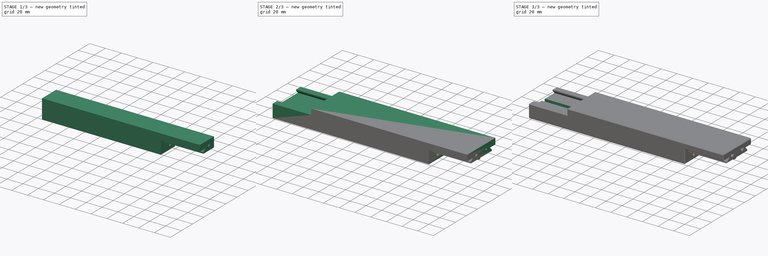
[diagram: build sequence overview — one tinted view per stage of 3, left to right]
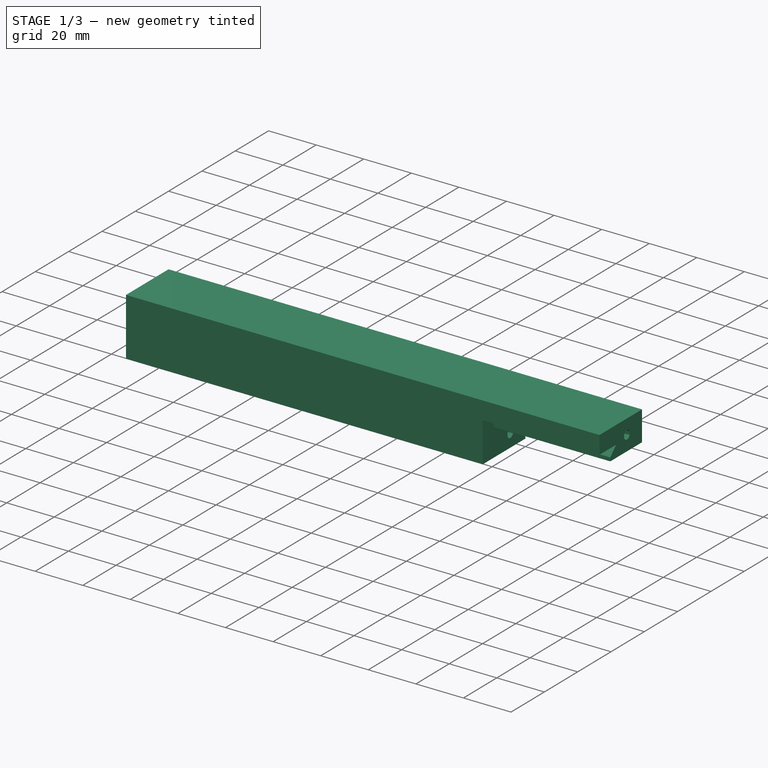
[diagram: stage 1 of 3 — iso view after this stage's code; geometry added in this stage tinted green]
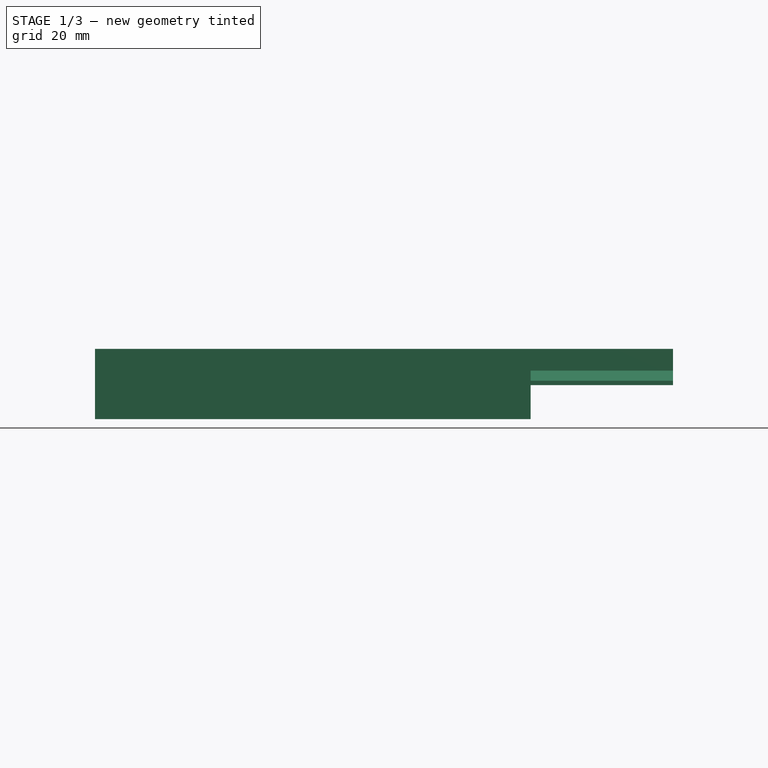
[diagram: stage 1 of 3 — front view after this stage's code; geometry added in this stage tinted green]
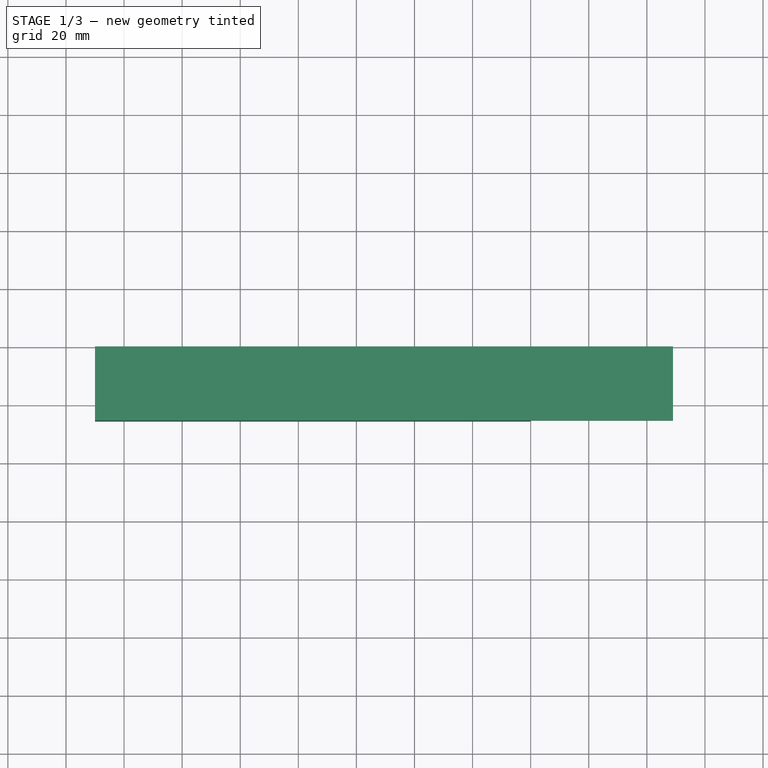
[diagram: stage 1 of 3 — top view after this stage's code; geometry added in this stage tinted green]
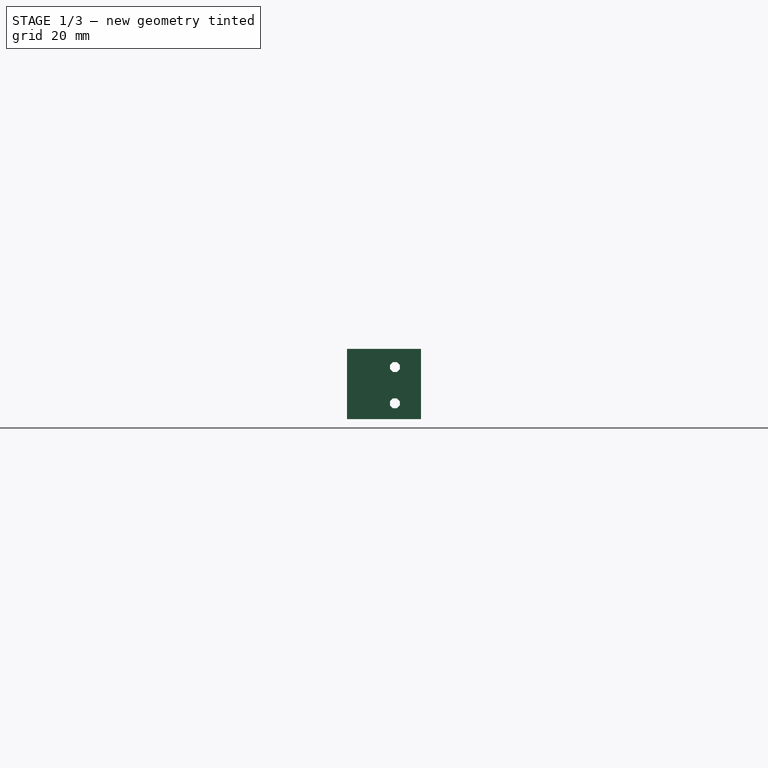
[diagram: stage 1 of 3 — right view after this stage's code; geometry added in this stage tinted green]
FCSTD DOCUMENT  (FreeCAD 1.0R39319 (Git))
Label: Tripod_arcs_extender
License: CERN Open Hardware Licence permissive
LicenseURL: https://cern-ohl.web.cern.ch/
objects: Sketcher::SketchObject×5, PartDesign::Pad×4, PartDesign::Mirrored×1, PartDesign::Pocket×1, PartDesign::Chamfer×1, PartDesign::Body×1
note: 31 computed .brp shape members not serialized (recipe doc carries the construction recipe); baked Part::Feature solids carry a one-line shape summary decoded from their .brp

FEATURE [Sketcher::SketchObject] Sketch
  ArcFitTolerance = 1e-06
  AttachmentSupport = -> [YZ_Plane]
  FullyConstrained = true
  MakeInternals = false
  MapMode = 5
  Placement = pos=(0,0,0) rot=(0.57735,0.57735,0.57735;2.0944rad)
  sketch-geometry (19):
    g0: LineSegment StartX=0 StartY=0 StartZ=0 EndX=-19 EndY=0 EndZ=0
    g1: LineSegment StartX=-19 StartY=1.5 StartZ=0 EndX=-15.5 EndY=5 EndZ=0
    g2: LineSegment StartX=-15.5 StartY=5 StartZ=0 EndX=-25.5 EndY=5 EndZ=0
    g3: LineSegment StartX=-25.5 StartY=5 StartZ=0 EndX=-25.5 EndY=12.5 EndZ=0
    g4: LineSegment StartX=-25.5 StartY=12.5 StartZ=0 EndX=0 EndY=12.5 EndZ=0
    g5: LineSegment StartX=0 StartY=12.5 StartZ=0 EndX=0 EndY=0 EndZ=0
    g6: Circle [constr] CenterX=-9 CenterY=6.25 CenterZ=0 NormalX=0 NormalY=0 NormalZ=1 AngleXU=0 Radius=1.7
    g7: LineSegment [constr] StartX=-9 StartY=6.25 StartZ=0 EndX=-9 EndY=12.5 EndZ=0
    g8: LineSegment [constr] StartX=-9 StartY=6.25 StartZ=0 EndX=0 EndY=6.25 EndZ=0
    g9: LineSegment StartX=-19 StartY=1.5 StartZ=0 EndX=-19 EndY=0 EndZ=0
    g10: LineSegment StartX=-10.7 StartY=6.95416 StartZ=0 EndX=-10.7 EndY=5.54584 EndZ=0
    g11: LineSegment StartX=-10.7 StartY=5.54584 StartZ=0 EndX=-9.70416 EndY=4.55 EndZ=0
    g12: LineSegment StartX=-9.70416 StartY=4.55 StartZ=0 EndX=-8.29584 EndY=4.55 EndZ=0
    g13: LineSegment StartX=-8.29584 StartY=4.55 StartZ=0 EndX=-7.3 EndY=5.54584 EndZ=0
    g14: LineSegment StartX=-7.3 StartY=5.54584 StartZ=0 EndX=-7.3 EndY=6.95416 EndZ=0
    g15: LineSegment StartX=-7.3 StartY=6.95416 StartZ=0 EndX=-8.29584 EndY=7.95 EndZ=0
    g16: LineSegment StartX=-8.29584 StartY=7.95 StartZ=0 EndX=-9.70416 EndY=7.95 EndZ=0
    g17: LineSegment StartX=-9.70416 StartY=7.95 StartZ=0 EndX=-10.7 EndY=6.95416 EndZ=0
    g18: Circle [constr] CenterX=-9 CenterY=6.25 CenterZ=0 NormalX=0 NormalY=0 NormalZ=1 AngleXU=0 Radius=1.84007
  constraints (48):
    c: Coincident(g-1,g0)
    c: Coincident(g1,g2)
    c: Horizontal(g2)
    c: Coincident(g2,g3)
    c: Vertical(g3)
    c: Coincident(g3,g4)
    c: Horizontal(g4)
    c: Coincident(g4,g5)
    c: Coincident(g5,g0)
    c: Vertical(g5)
    c: Angle(g0,g1) = 0.785398
    c: DistanceY(g3,g3) = 7.5
    c: DistanceX(g2,g2) = 10
    c: Diameter(g6) = 3.4
    c: Coincident(g7,g6)
    c: PointOnObject(g7,g4)
    c: Vertical(g7)
    c: Coincident(g8,g6)
    c: Symmetric(g5,g5,g8)
    c: Horizontal(g8)
    c: DistanceX(g8,g8) = 9
    c: Vertical(g9)
    c: Coincident(g0,g9)
    c: Coincident(g1,g9)
    c: DistanceX(g0,g0) = 19
    c: Distance(g1,g2) = 3.5
    c: Distance(g9,g9) = 1.5
    c: Horizontal(g0)
    c: Coincident(g10,g11)
    c: Coincident(g11,g12)
    c: Coincident(g12,g13)
    c: Coincident(g13,g14)
    c: Coincident(g14,g15)
    c: Coincident(g15,g16)
    c: Coincident(g16,g17)
    c: Coincident(g17,g10)
    c: Equal(g10, g11-g17) x7
    c: PointOnObject(g10,g18)
    c: PointOnObject(g11,g18)
    c: PointOnObject(g12,g18)
    c: PointOnObject(g13,g18)
    c: PointOnObject(g14,g18)
    c: PointOnObject(g15,g18)
    c: PointOnObject(g16,g18)
    c: PointOnObject(g17,g18)
    c: Coincident(g18,g6)
    c: Horizontal(g16)
    c: Tangent(g16,g6)
FEATURE [PartDesign::Pad] Pad
  Direction = (1,0,0)
  Length = 49
  Length2 = 10
  Placement = pos=(0,0,0) rot=(1,1,1;2.0944rad)
  Profile = -> Sketch
  ReferenceAxis = -> Sketch [N_Axis]
  Refine = true
  Suppressed = false
  Type = 0
FEATURE [Sketcher::SketchObject] Sketch001
  ArcFitTolerance = 1e-06
  AttachmentSupport = -> [Pad]
  ExternalGeometry = -> [Pad]
  FullyConstrained = true
  MakeInternals = false
  MapMode = 5
  Placement = pos=(0,0,0) rot=(0.57735,0.57735,-0.57735;4.18879rad)
  sketch-geometry (23):
    g0: LineSegment StartX=0 StartY=0 StartZ=0 EndX=0 EndY=11.7 EndZ=0
    g1: LineSegment StartX=0 StartY=11.7 StartZ=0 EndX=-25.5 EndY=11.7 EndZ=0
    g2: LineSegment StartX=-25.5 StartY=11.7 StartZ=0 EndX=-25.5 EndY=-12.5 EndZ=0
    g3: LineSegment StartX=-25.5 StartY=-12.5 StartZ=0 EndX=0 EndY=-12.5 EndZ=0
    g4: LineSegment StartX=0 StartY=-12.5 StartZ=0 EndX=0 EndY=0 EndZ=0
    g5: LineSegment StartX=-9.70416 StartY=-4.55 StartZ=0 EndX=-10.7 EndY=-5.54584 EndZ=0
    g6: LineSegment StartX=-10.7 StartY=-5.54584 StartZ=0 EndX=-10.7 EndY=-6.95416 EndZ=0
    g7: LineSegment StartX=-10.7 StartY=-6.95416 StartZ=0 EndX=-9.70416 EndY=-7.95 EndZ=0
    g8: LineSegment StartX=-9.70416 StartY=-7.95 StartZ=0 EndX=-8.29584 EndY=-7.95 EndZ=0
    g9: LineSegment StartX=-8.29584 StartY=-7.95 StartZ=0 EndX=-7.3 EndY=-6.95416 EndZ=0
    g10: LineSegment StartX=-7.3 StartY=-6.95416 StartZ=0 EndX=-7.3 EndY=-5.54584 EndZ=0
    g11: LineSegment StartX=-7.3 StartY=-5.54584 StartZ=0 EndX=-8.29584 EndY=-4.55 EndZ=0
    g12: LineSegment StartX=-8.29584 StartY=-4.55 StartZ=0 EndX=-9.70416 EndY=-4.55 EndZ=0
    g13: Circle [constr] CenterX=-9 CenterY=-6.25 CenterZ=0 NormalX=0 NormalY=0 NormalZ=1 AngleXU=0 Radius=1.84007
    g14: LineSegment StartX=-9.70416 StartY=7.95 StartZ=0 EndX=-10.7 EndY=6.95416 EndZ=0
    g15: LineSegment StartX=-10.7 StartY=6.95416 StartZ=0 EndX=-10.7 EndY=5.54584 EndZ=0
    g16: LineSegment StartX=-10.7 StartY=5.54584 StartZ=0 EndX=-9.70416 EndY=4.55 EndZ=0
    g17: LineSegment StartX=-9.70416 StartY=4.55 StartZ=0 EndX=-8.29584 EndY=4.55 EndZ=0
    g18: LineSegment StartX=-8.29584 StartY=4.55 StartZ=0 EndX=-7.3 EndY=5.54584 EndZ=0
    g19: LineSegment StartX=-7.3 StartY=5.54584 StartZ=0 EndX=-7.3 EndY=6.95416 EndZ=0
    g20: LineSegment StartX=-7.3 StartY=6.95416 StartZ=0 EndX=-8.29584 EndY=7.95 EndZ=0
    g21: LineSegment StartX=-8.29584 StartY=7.95 StartZ=0 EndX=-9.70416 EndY=7.95 EndZ=0
    g22: Circle [constr] CenterX=-9 CenterY=6.25 CenterZ=0 NormalX=0 NormalY=0 NormalZ=1 AngleXU=0 Radius=1.84007
  constraints (52):
    c: Coincident(g-1,g0)
    c: PointOnObject(g0,g-2)
    c: Coincident(g0,g1)
    c: Horizontal(g1)
    c: Coincident(g1,g2)
    c: Coincident(g2,g-3)
    c: Vertical(g2)
    c: Coincident(g2,g3)
    c: Coincident(g3,g-3)
    c: Coincident(g3,g4)
    c: Coincident(g4,g0)
    c: DistanceY(g0,g0) = 11.7
    c: Coincident(g5,g6)
    c: Coincident(g6,g7)
    c: Coincident(g7,g8)
    c: Coincident(g8,g9)
    c: Coincident(g9,g10)
    c: Coincident(g10,g11)
    c: Coincident(g11,g12)
    c: Coincident(g12,g5)
    c: Equal(g5, g6-g12) x7
    c: PointOnObject(g5,g13)
    c: PointOnObject(g6,g13)
    c: PointOnObject(g7,g13)
    c: PointOnObject(g8,g13)
    c: PointOnObject(g9,g13)
    c: PointOnObject(g10,g13)
    c: PointOnObject(g11,g13)
    c: PointOnObject(g12,g13)
    c: Horizontal(g12)
    c: Equal(g12,g-6)
    c: Coincident(g5,g-6)
    c: Coincident(g14,g15)
    c: Coincident(g15,g16)
    c: Coincident(g16,g17)
    c: Coincident(g17,g18)
    c: Coincident(g18,g19)
    c: Coincident(g19,g20)
    c: Coincident(g20,g21)
    c: Coincident(g21,g14)
    c: Equal(g14, g15-g21) x7
    c: PointOnObject(g14,g22)
    c: PointOnObject(g15,g22)
    c: PointOnObject(g16,g22)
    c: PointOnObject(g17,g22)
    c: PointOnObject(g18,g22)
    c: PointOnObject(g19,g22)
    c: PointOnObject(g20,g22)
    c: PointOnObject(g21,g22)
    c: Horizontal(g21)
    c: Equal(g21,g12)
    c: Symmetric(g13,g22,g-1)
FEATURE [PartDesign::Pad] Pad001
  BaseFeature = -> Pad
  Direction = (-1,0,0)
  Length = 150
  Length2 = 10
  Placement = pos=(0,0,0) rot=(1,1,1;2.0944rad)
  Profile = -> Sketch001
  ReferenceAxis = -> Sketch001 [N_Axis]
  Refine = true
  Suppressed = false
  Type = 0
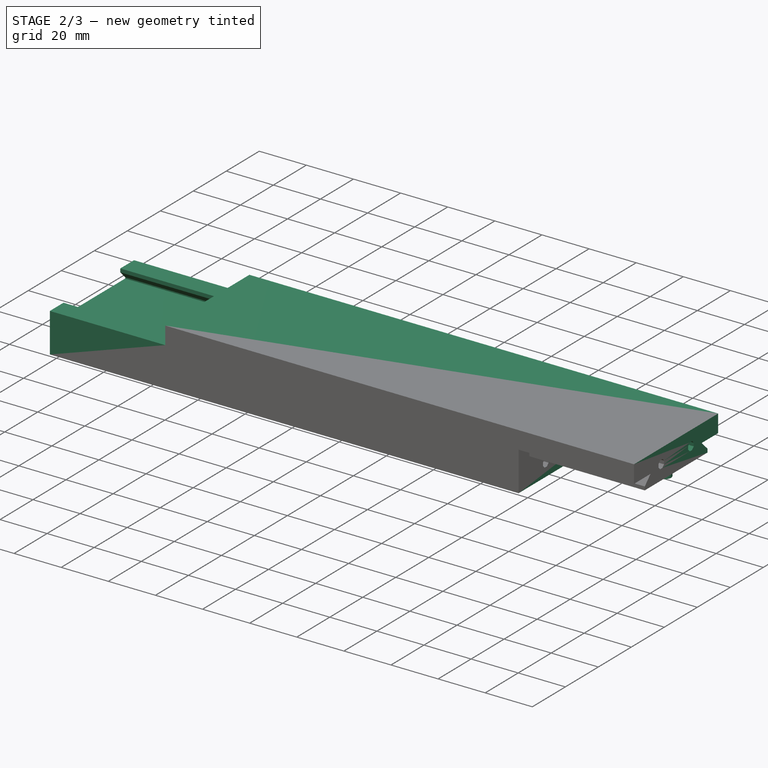
[diagram: stage 2 of 3 — iso view after this stage's code; geometry added in this stage tinted green]
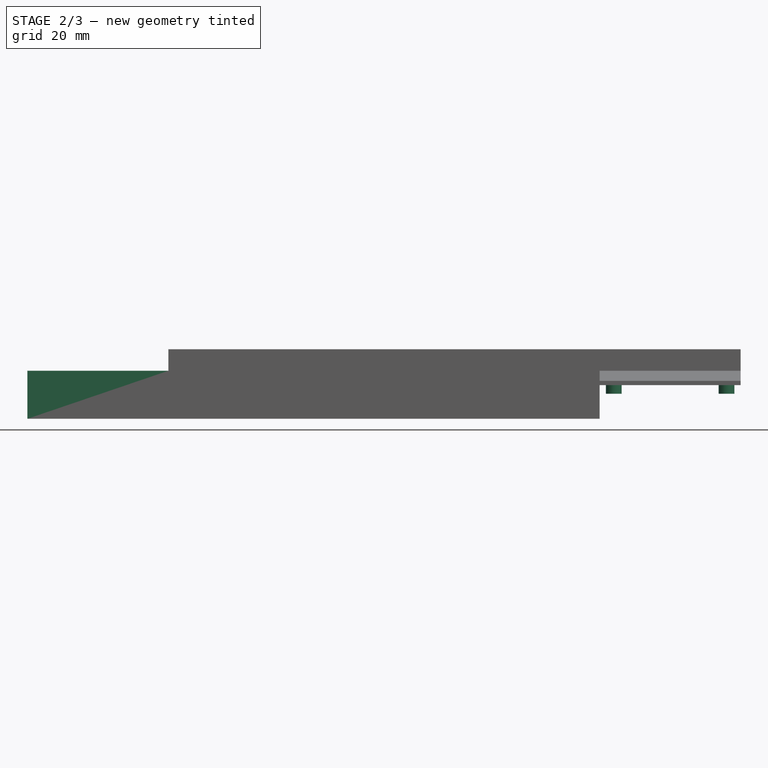
[diagram: stage 2 of 3 — front view after this stage's code; geometry added in this stage tinted green]
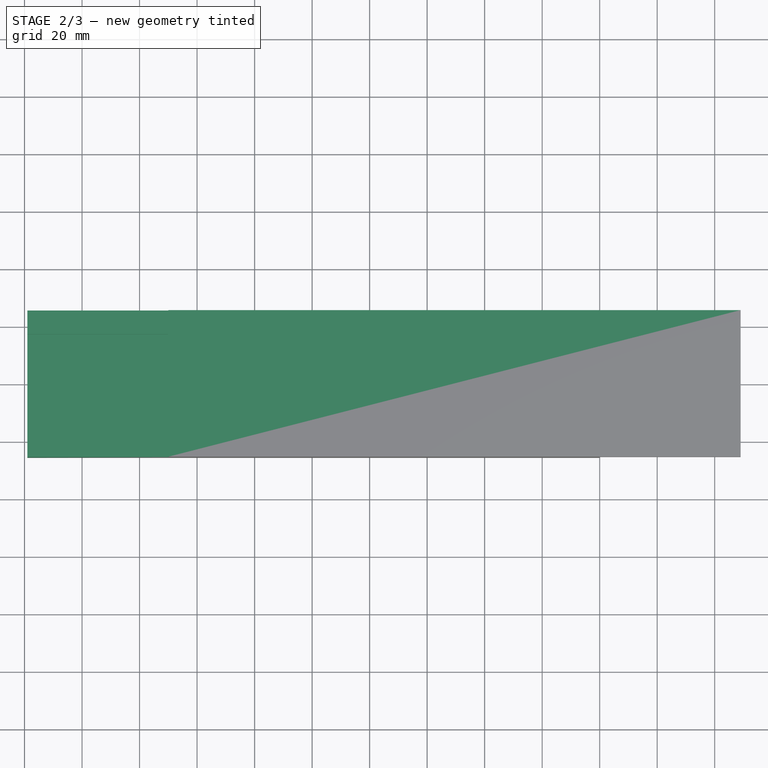
[diagram: stage 2 of 3 — top view after this stage's code; geometry added in this stage tinted green]
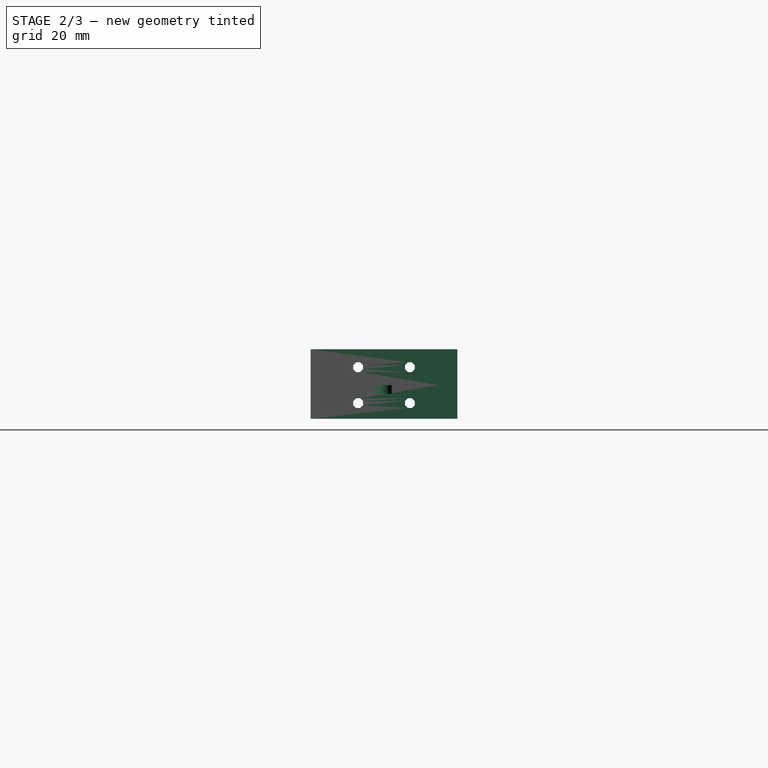
[diagram: stage 2 of 3 — right view after this stage's code; geometry added in this stage tinted green]
FEATURE [Sketcher::SketchObject] Sketch002
  ArcFitTolerance = 1e-06
  AttachmentSupport = -> [Pad001]
  ExternalGeometry = -> [Pad001]
  FullyConstrained = true
  MakeInternals = false
  MapMode = 5
  Placement = pos=(-150,3.33e-14,-1.67e-14) rot=(0.57735,0.57735,-0.57735;4.18879rad)
  sketch-geometry (17):
    g0: LineSegment StartX=0 StartY=11.7 StartZ=0 EndX=-25.5 EndY=11.7 EndZ=0
    g1: LineSegment StartX=-25.5 StartY=11.7 StartZ=0 EndX=-25.5 EndY=-5 EndZ=0
    g2: LineSegment StartX=-25.5 StartY=-5 StartZ=0 EndX=-17.2121 EndY=-5 EndZ=0
    g3: LineSegment StartX=-17.2121 StartY=-3.5 StartZ=0 EndX=-20.2121 EndY=-0.5 EndZ=0
    g4: LineSegment StartX=-20.2121 StartY=-0.5 StartZ=0 EndX=-20.2121 EndY=0 EndZ=0
    g5: LineSegment StartX=-20.2121 StartY=0 StartZ=0 EndX=0 EndY=0 EndZ=0
    g6: LineSegment StartX=0 StartY=0 StartZ=0 EndX=0 EndY=11.7 EndZ=0
    g7: LineSegment StartX=-17.2121 StartY=-3.5 StartZ=0 EndX=-17.2121 EndY=-5 EndZ=0
    g8: LineSegment StartX=-9.70416 StartY=7.95 StartZ=0 EndX=-10.7 EndY=6.95416 EndZ=0
    g9: LineSegment StartX=-10.7 StartY=6.95416 StartZ=0 EndX=-10.7 EndY=5.54584 EndZ=0
    g10: LineSegment StartX=-10.7 StartY=5.54584 StartZ=0 EndX=-9.70416 EndY=4.55 EndZ=0
    g11: LineSegment StartX=-9.70416 StartY=4.55 StartZ=0 EndX=-8.29584 EndY=4.55 EndZ=0
    g12: LineSegment StartX=-8.29584 StartY=4.55 StartZ=0 EndX=-7.3 EndY=5.54584 EndZ=0
    g13: LineSegment StartX=-7.3 StartY=5.54584 StartZ=0 EndX=-7.3 EndY=6.95416 EndZ=0
    g14: LineSegment StartX=-7.3 StartY=6.95416 StartZ=0 EndX=-8.29584 EndY=7.95 EndZ=0
    g15: LineSegment StartX=-8.29584 StartY=7.95 StartZ=0 EndX=-9.70416 EndY=7.95 EndZ=0
    g16: Circle [constr] CenterX=-9 CenterY=6.25 CenterZ=0 NormalX=0 NormalY=0 NormalZ=1 AngleXU=0 Radius=1.84007
  constraints (40):
    c: Coincident(g-6,g0)
    c: Coincident(g0,g-3)
    c: Coincident(g0,g1)
    c: Coincident(g1,g-4)
    c: Coincident(g1,g2)
    c: Coincident(g5,g-1)
    c: Coincident(g5,g6)
    c: Coincident(g6,g0)
    c: Vertical(g7)
    c: Coincident(g2,g7)
    c: Distance(g7,g7) = 1.5
    c: Horizontal(g2)
    c: Parallel(g3,g-7)
    c: Coincident(g8,g9)
    c: Coincident(g9,g10)
    c: Coincident(g10,g11)
    c: Coincident(g11,g12)
    c: Coincident(g12,g13)
    c: Coincident(g13,g14)
    c: Coincident(g14,g15)
    c: Coincident(g15,g8)
    c: Equal(g8, g9-g15) x7
    c: PointOnObject(g8,g16)
    c: PointOnObject(g9,g16)
    c: PointOnObject(g10,g16)
    c: PointOnObject(g11,g16)
    c: PointOnObject(g12,g16)
    c: PointOnObject(g13,g16)
    c: PointOnObject(g14,g16)
    c: PointOnObject(g15,g16)
    c: Horizontal(g15)
    c: Equal(g15,g-8)
    c: Coincident(g8,g-8)
    c: Coincident(g3,g4)
    c: Coincident(g3,g7)
    c: Coincident(g4,g5)
    c: Vertical(g4)
    c: Distance(g-7,g3) = 0.15
    c: Horizontal(g5)
    c: Distance(g4,g4) = 0.5
FEATURE [PartDesign::Pad] Pad002
  BaseFeature = -> Pad001
  Direction = (-1,0,0)
  Length = 49
  Length2 = 10
  Placement = pos=(0,0,0) rot=(1,1,1;2.0944rad)
  Profile = -> Sketch002
  ReferenceAxis = -> Sketch002 [N_Axis]
  Refine = true
  Suppressed = false
  Type = 0
FEATURE [PartDesign::Mirrored] Mirrored
  BaseFeature = -> Pad002
  MirrorPlane = -> Sketch002 [V_Axis]
  Originals = -> [Pad002,Pad001,Pad]
  Placement = pos=(0,0,0) rot=(1,1,1;2.0944rad)
  Refine = true
  Suppressed = false
  TransformMode = 0
FEATURE [Sketcher::SketchObject] Sketch003
  ArcFitTolerance = 1e-06
  AttachmentSupport = -> [Mirrored]
  ExternalGeometry = -> [Mirrored]
  FullyConstrained = true
  MakeInternals = false
  MapMode = 5
  Placement = pos=(0,0,-2.2e-15) rot=(0.707107,0.707107,0;3.14159rad)
  sketch-geometry (4):
    g0: Circle CenterX=0 CenterY=44.1 CenterZ=0 NormalX=0 NormalY=0 NormalZ=1 AngleXU=0 Radius=2.75
    g1: Circle CenterX=0 CenterY=4.9 CenterZ=0 NormalX=0 NormalY=0 NormalZ=1 AngleXU=0 Radius=2.75
    g2: LineSegment [constr] StartX=0 StartY=4.9 StartZ=0 EndX=0 EndY=0 EndZ=0
    g3: LineSegment [constr] StartX=0 StartY=44.1 StartZ=0 EndX=6.06e-14 EndY=49 EndZ=0
  constraints (10):
    c: PointOnObject(g0,g-2)
    c: PointOnObject(g1,g-2)
    c: Equal(g0,g1)
    c: Diameter(g0) = 5.5
    c: DistanceY(g1,g0) = 39.2
    c: Coincident(g2,g1)
    c: Coincident(g2,g-1)
    c: Coincident(g3,g0)
    c: Symmetric(g-3,g-3,g3)
    c: Equal(g3,g2)
FEATURE [PartDesign::Pad] Pad003
  BaseFeature = -> Mirrored
  Direction = (0,-1.1e-15,-1)
  Length = 3
  Length2 = 10
  Placement = pos=(0,0,0) rot=(1,1,1;2.0944rad)
  Profile = -> Sketch003
  ReferenceAxis = -> Sketch003 [N_Axis]
  Refine = true
  Suppressed = false
  Type = 0
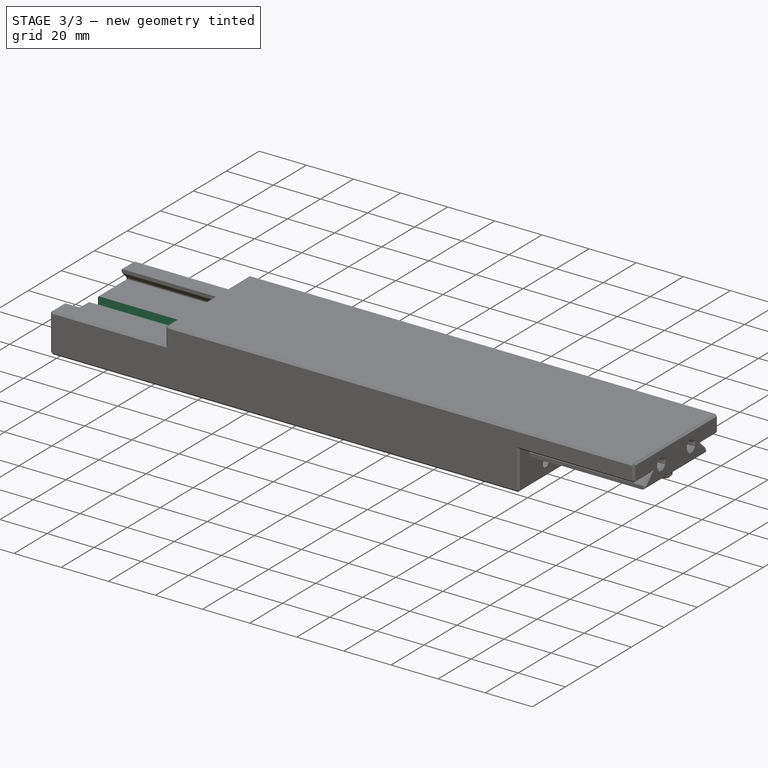
[diagram: stage 3 of 3 — iso view after this stage's code; geometry added in this stage tinted green]
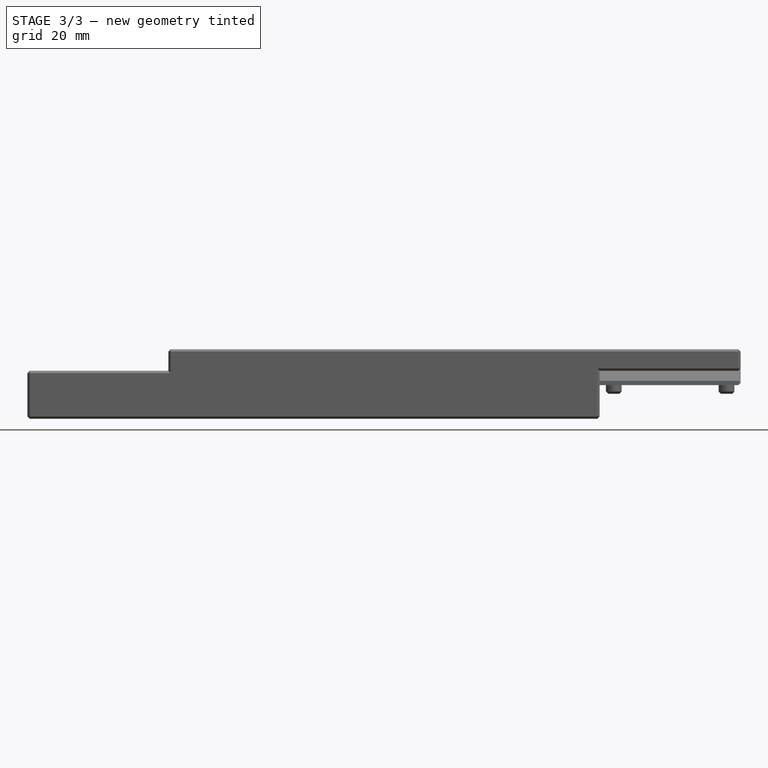
[diagram: stage 3 of 3 — front view after this stage's code; geometry added in this stage tinted green]
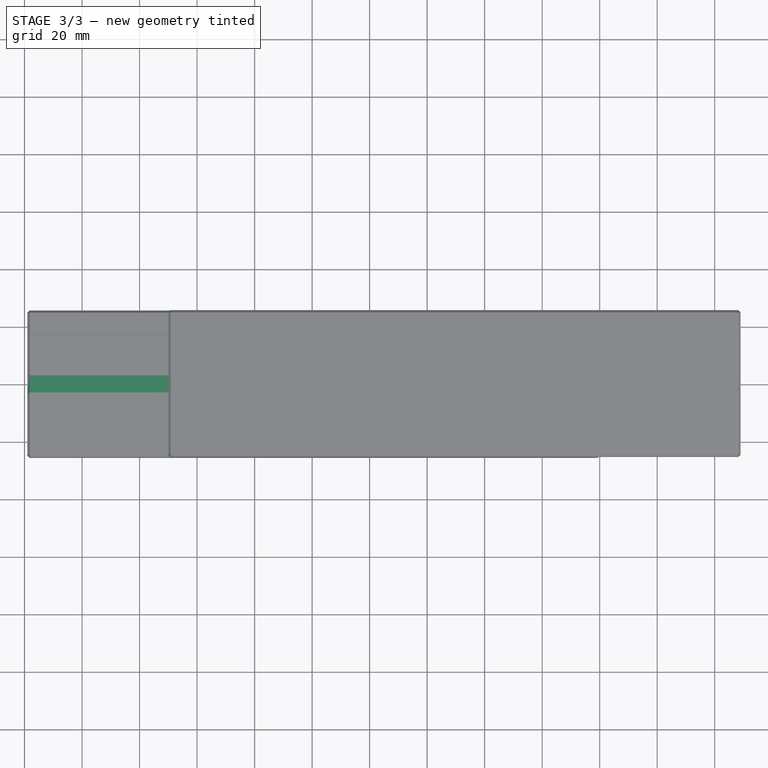
[diagram: stage 3 of 3 — top view after this stage's code; geometry added in this stage tinted green]
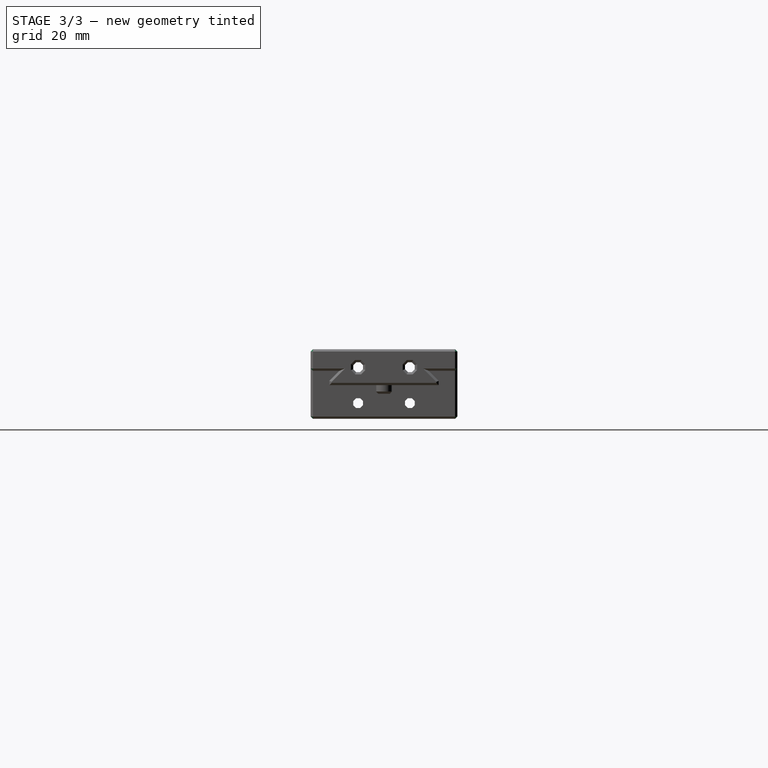
[diagram: stage 3 of 3 — right view after this stage's code; geometry added in this stage tinted green]
FEATURE [Sketcher::SketchObject] Sketch004
  ArcFitTolerance = 1e-06
  AttachmentSupport = -> [Pad003]
  ExternalGeometry = -> [Pad003]
  FullyConstrained = true
  MakeInternals = false
  MapMode = 5
  Placement = pos=(-199,-7.6e-14,-4.42e-14) rot=(0.57735,0.57735,-0.57735;4.18879rad)
  sketch-geometry (6):
    g0: LineSegment StartX=-2.9 StartY=0 StartZ=0 EndX=-2.9 EndY=3.15 EndZ=0
    g1: LineSegment StartX=-2.9 StartY=3.15 StartZ=0 EndX=2.9 EndY=3.15 EndZ=0
    g2: LineSegment StartX=2.9 StartY=3.15 StartZ=0 EndX=2.9 EndY=0 EndZ=0
    g3: LineSegment StartX=2.9 StartY=0 StartZ=0 EndX=-2.9 EndY=0 EndZ=0
    g4: LineSegment [constr] StartX=-2.75 StartY=3 StartZ=0 EndX=-2.75 EndY=3.15 EndZ=0
    g5: LineSegment [constr] StartX=-2.75 StartY=3 StartZ=0 EndX=-2.9 EndY=3 EndZ=0
  constraints (17):
    c: PointOnObject(g0,g-1)
    c: Vertical(g0)
    c: Coincident(g0,g1)
    c: Horizontal(g1)
    c: Coincident(g1,g2)
    c: Vertical(g2)
    c: Coincident(g2,g3)
    c: Coincident(g3,g0)
    c: Symmetric(g2,g0,g-1)
    c: Coincident(g4,g-3)
    c: PointOnObject(g4,g1)
    c: Vertical(g4)
    c: Coincident(g5,g4)
    c: PointOnObject(g5,g0)
    c: Horizontal(g5)
    c: Equal(g5,g4)
    c: Distance(g4,g4) = 0.15
FEATURE [PartDesign::Pocket] Pocket
  BaseFeature = -> Pad003
  Direction = (1,0,0)
  Length = 0
  Length2 = 5
  Placement = pos=(0,0,0) rot=(1,1,1;2.0944rad)
  Profile = -> Sketch004
  ReferenceAxis = -> Sketch004 [N_Axis]
  Refine = true
  Suppressed = false
  Type = 3
  UpToFace = -> Pad003 [Face10]
FEATURE [PartDesign::Chamfer] Chamfer
  Angle = 45
  Base = -> Pocket [Face10,Face3,Face8,Face15,Face7,Face5,Edge178,Edge180]
  BaseFeature = -> Pocket
  ChamferType = 0
  FlipDirection = false
  Placement = pos=(0,0,0) rot=(1,1,1;2.0944rad)
  Refine = true
  Size = 0.8
  Size2 = 1
  SupportTransform = false
  Suppressed = false
  UseAllEdges = false
FEATURE [PartDesign::Body] Body
  AllowCompound = false
  Group = -> [Sketch,Pad,Sketch001,Pad001,Sketch002,Pad002,Mirrored,Sketch003,Pad003,Sketch004,Pocket,Chamfer]
  Origin = -> Origin
  Tip = -> Chamfer
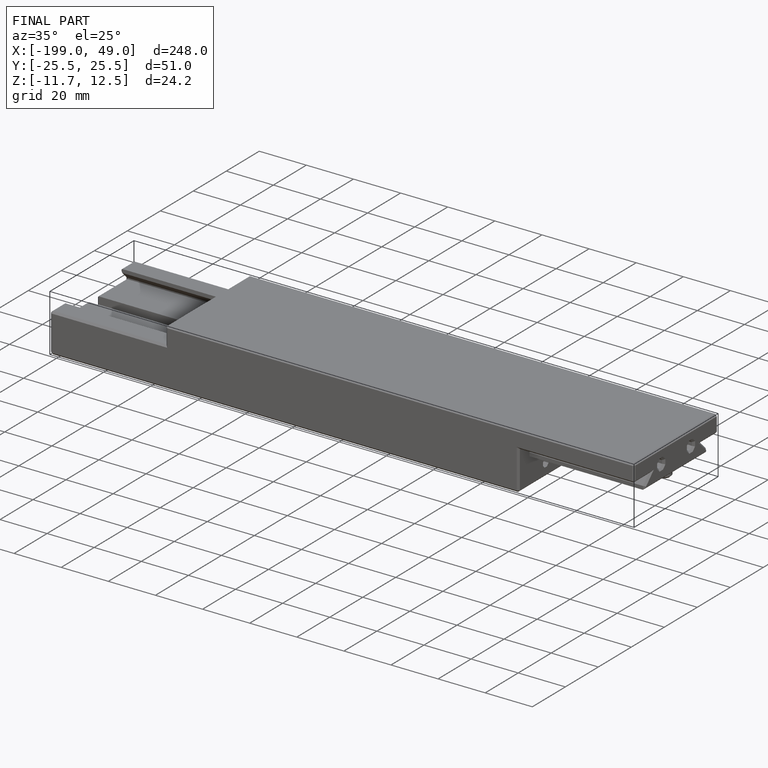
[diagram: finished part — iso view with bounding-box wireframe]
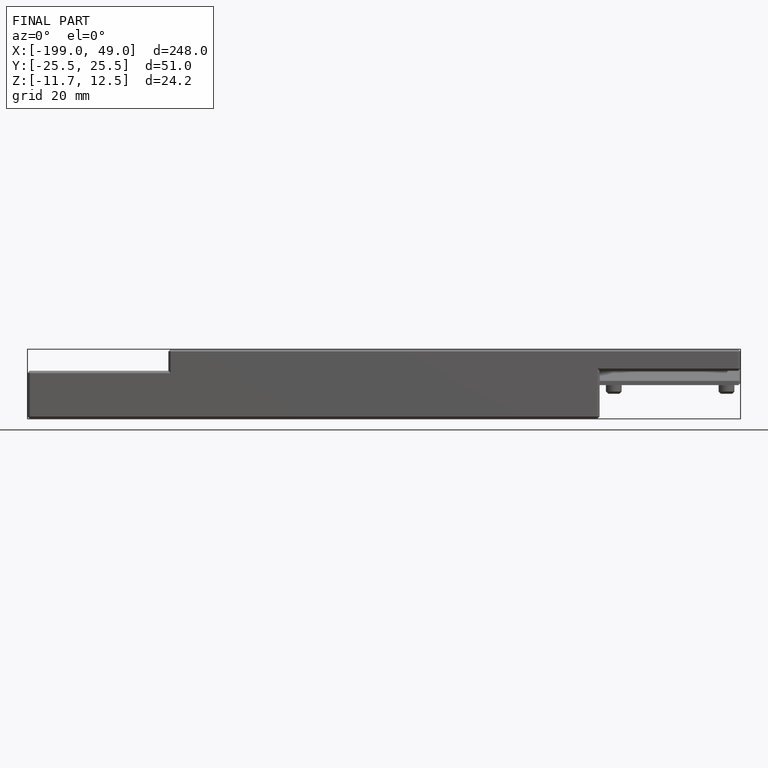
[diagram: finished part — front view with bounding-box wireframe]
